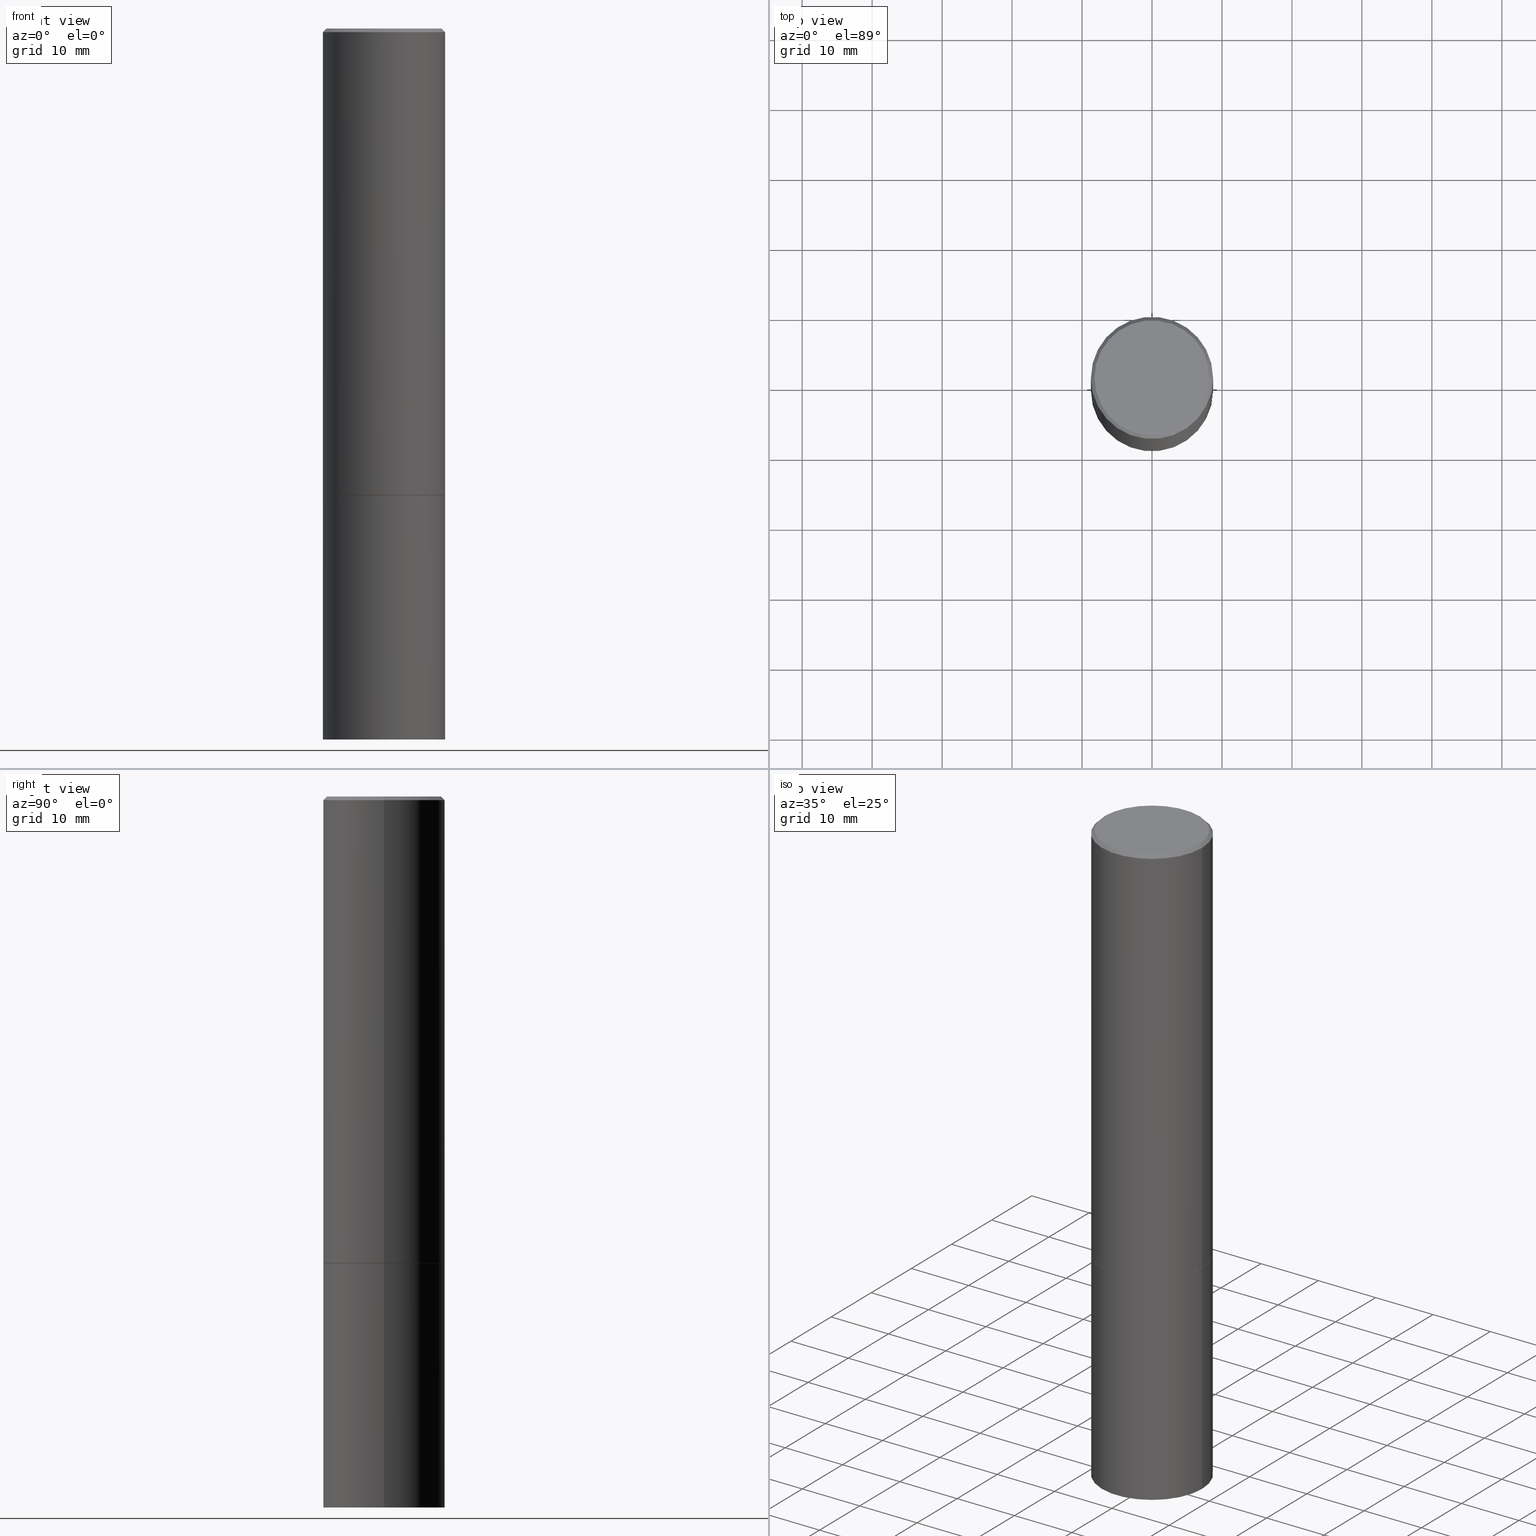
[diagram: canonical four-view strip — front | top / right | iso, engineering-drawing reading convention]
A machine part, canonical four-view strip (front | top / right | iso — engineering-drawing reading convention). The complete STEP part file that produces these views, byte-faithful:
ISO-10303-21;
HEADER;
FILE_DESCRIPTION (( 'STEP AP203' ),
    '1' );
FILE_NAME ('39069.STEP',
    '2023-03-21T20:49:59',
    ( '' ),
    ( '' ),
    'SwSTEP 2.0',
    'SolidWorks 2022',
    '' );
FILE_SCHEMA (( 'CONFIG_CONTROL_DESIGN' ));
ENDSEC;

DATA;
#1 = CARTESIAN_POINT ( 'NONE',  ( -0.3427499999999999991, -6.729753287645514809E-15, -2.625000000000000444 ) ) ;
#2 = FACE_OUTER_BOUND ( 'NONE', #204, .T. ) ;
#3 = FACE_OUTER_BOUND ( 'NONE', #85, .T. ) ;
#4 = COORDINATED_UNIVERSAL_TIME_OFFSET ( 5, 0, .BEHIND. ) ;
#5 = CARTESIAN_POINT ( 'NONE',  ( 6.419355616235984688E-29, -9.165138514463258190E-15, -2.625000000000000444 ) ) ;
#6 = EDGE_CURVE ( 'NONE', #372, #180, #163, .T. ) ;
#7 = CIRCLE ( 'NONE', #279, 0.3437500000000000000 ) ;
#8 = VECTOR ( 'NONE', #309, 39.37007874015748143 ) ;
#9 =( GEOMETRIC_REPRESENTATION_CONTEXT ( 3 ) GLOBAL_UNCERTAINTY_ASSIGNED_CONTEXT ( ( #78 ) ) GLOBAL_UNIT_ASSIGNED_CONTEXT ( ( #214, #357, #335 ) ) REPRESENTATION_CONTEXT ( 'NONE', 'WORKASPACE' ) );
#10 = COORDINATED_UNIVERSAL_TIME_OFFSET ( 5, 0, .BEHIND. ) ;
#11 = ORIENTED_EDGE ( 'NONE', *, *, #103, .T. ) ;
#12 = EDGE_LOOP ( 'NONE', ( #50, #53, #273, #347 ) ) ;
#13 = APPROVAL_DATE_TIME ( #286, #260 ) ;
#14 = CC_DESIGN_APPROVAL ( #232, ( #154 ) ) ;
#15 = CYLINDRICAL_SURFACE ( 'NONE', #21, 0.3437500000000000000 ) ;
#16 = ORIENTED_EDGE ( 'NONE', *, *, #51, .F. ) ;
#17 = CIRCLE ( 'NONE', #389, 0.3427499999999999991 ) ;
#18 = ORIENTED_EDGE ( 'NONE', *, *, #258, .T. ) ;
#19 = CLOSED_SHELL ( 'NONE', ( #340, #136, #172, #196, #140, #193, #44, #125 ) ) ;
#20 = ORIENTED_EDGE ( 'NONE', *, *, #356, .T. ) ;
#21 = AXIS2_PLACEMENT_3D ( 'NONE', #210, #301, #155 ) ;
#22 = DIRECTION ( 'NONE',  ( -2.445468806185136597E-29, 3.491481338843145583E-15, 1.000000000000000000 ) ) ;
#23 = EDGE_LOOP ( 'NONE', ( #305, #321 ) ) ;
#24 = FACE_OUTER_BOUND ( 'NONE', #266, .T. ) ;
#25 = CARTESIAN_POINT ( 'NONE',  ( -0.3437500000000000000, -2.173247675775292485E-15, -2.624000000000000110 ) ) ;
#26 = CARTESIAN_POINT ( 'NONE',  ( 6.416910147429799085E-29, -9.161647033124413605E-15, -2.624000000000000110 ) ) ;
#27 = DIRECTION ( 'NONE',  ( -2.445468806185136597E-29, 3.491481338843145583E-15, 1.000000000000000000 ) ) ;
#28 = DIRECTION ( 'NONE',  ( -1.000000000000000000, 6.982962677686266711E-15, 0.000000000000000000 ) ) ;
#29 = CONICAL_SURFACE ( 'NONE', #224, 0.3437499999999997224, 0.7853981633974473908 ) ;
#30 = PRODUCT_DEFINITION_FORMATION_WITH_SPECIFIED_SOURCE ( 'ANY', '', #116, .NOT_KNOWN. ) ;
#31 = CARTESIAN_POINT ( 'NONE',  ( -1.043851414335219820E-46, 1.490343170380447200E-32, 4.268512490100411279E-18 ) ) ;
#32 = DIRECTION ( 'NONE',  ( 1.000000000000000000, -6.982962677686263555E-15, 0.000000000000000000 ) ) ;
#33 = DATE_TIME_ROLE ( 'creation_date' ) ;
#34 = FACE_OUTER_BOUND ( 'NONE', #12, .T. ) ;
#35 = EDGE_CURVE ( 'NONE', #255, #205, #17, .T. ) ;
#36 = LINE ( 'NONE', #1, #277 ) ;
#37 = APPROVAL_DATE_TIME ( #39, #232 ) ;
#38 = EDGE_LOOP ( 'NONE', ( #367, #175, #290, #189 ) ) ;
#39 = DATE_AND_TIME ( #227, #239 ) ;
#40 = PERSON_AND_ORGANIZATION ( #275, #106 ) ;
#41 = EDGE_LOOP ( 'NONE', ( #129, #184, #18, #43 ) ) ;
#42 = APPROVAL_STATUS ( 'not_yet_approved' ) ;
#43 = ORIENTED_EDGE ( 'NONE', *, *, #319, .F. ) ;
#44 = ADVANCED_FACE ( 'NONE', ( #115 ), #209, .F. ) ;
#45 = DIRECTION ( 'NONE',  ( 1.000000000000000000, -6.982962677686265922E-15, 4.876176775795935793E-29 ) ) ;
#46 = EDGE_LOOP ( 'NONE', ( #268, #296 ) ) ;
#47 = DIRECTION ( 'NONE',  ( 0.9986295347545742773, -7.033825938271997912E-15, -0.05233595624293643084 ) ) ;
#48 = CIRCLE ( 'NONE', #222, 0.3437499999999997224 ) ;
#49 = EDGE_CURVE ( 'NONE', #147, #372, #171, .T. ) ;
#50 = ORIENTED_EDGE ( 'NONE', *, *, #35, .T. ) ;
#51 = EDGE_CURVE ( 'NONE', #147, #180, #139, .T. ) ;
#52 = DIRECTION ( 'NONE',  ( -2.445468806185136597E-29, 3.491481338843145583E-15, 1.000000000000000000 ) ) ;
#53 = ORIENTED_EDGE ( 'NONE', *, *, #142, .T. ) ;
#54 = DIRECTION ( 'NONE',  ( 1.000000000000000000, 0.000000000000000000, 0.000000000000000000 ) ) ;
#55 = CIRCLE ( 'NONE', #99, 0.3437499999999997224 ) ;
#56 = PRODUCT_DEFINITION_SHAPE ( 'NONE', 'NONE',  #154 ) ;
#57 = DIRECTION ( 'NONE',  ( -2.445468806185136877E-29, 3.491481338843145188E-15, 1.000000000000000000 ) ) ;
#58 = EDGE_LOOP ( 'NONE', ( #88, #20, #73, #353 ) ) ;
#59 = DIRECTION ( 'NONE',  ( -2.445468806185136597E-29, 3.491481338843145583E-15, 1.000000000000000000 ) ) ;
#60 = DIRECTION ( 'NONE',  ( 2.445468806185136597E-29, -3.491481338843145583E-15, -1.000000000000000000 ) ) ;
#61 = DIRECTION ( 'NONE',  ( -0.7071067811864267805, 7.493145998869918709E-15, 0.7071067811866682540 ) ) ;
#62 = DIRECTION ( 'NONE',  ( -2.445468806185136597E-29, 3.491481338843145583E-15, 1.000000000000000000 ) ) ;
#63 = CARTESIAN_POINT ( 'NONE',  ( 4.890937612370296805E-31, -6.982962677686323656E-17, -0.02000000000000009409 ) ) ;
#64 = VECTOR ( 'NONE', #47, 39.37007874015748143 ) ;
#65 = AXIS2_PLACEMENT_3D ( 'NONE', #191, #52, #79 ) ;
#66 = CARTESIAN_POINT ( 'NONE',  ( 0.3437499999999998335, -2.400393420454653393E-15, 1.676185766679852018E-29 ) ) ;
#67 = CARTESIAN_POINT ( 'NONE',  ( -0.3437499999999998335, 2.442490654175343206E-15, -1.690883937275123074E-29 ) ) ;
#68 = CALENDAR_DATE ( 2023, 21, 3 ) ;
#69 = ORIENTED_EDGE ( 'NONE', *, *, #253, .F. ) ;
#70 = DIRECTION ( 'NONE',  ( 2.445468806185136597E-29, -3.491481338843145583E-15, -1.000000000000000000 ) ) ;
#71 = VERTEX_POINT ( 'NONE', #81 ) ;
#72 = PERSON_AND_ORGANIZATION ( #275, #106 ) ;
#73 = ORIENTED_EDGE ( 'NONE', *, *, #360, .T. ) ;
#74 = DATE_AND_TIME ( #254, #113 ) ;
#75 = EDGE_LOOP ( 'NONE', ( #16, #206, #104 ) ) ;
#76 = CC_DESIGN_PERSON_AND_ORGANIZATION_ASSIGNMENT ( #350, #316, ( #116 ) ) ;
#77 = CALENDAR_DATE ( 2023, 21, 3 ) ;
#78 = UNCERTAINTY_MEASURE_WITH_UNIT (LENGTH_MEASURE( 1.000000000000000082E-05 ), #214, 'distance_accuracy_value', 'NONE');
#79 = DIRECTION ( 'NONE',  ( 1.000000000000000000, -6.982962677686266711E-15, 4.876157412475881652E-29 ) ) ;
#80 = AXIS2_PLACEMENT_3D ( 'NONE', #195, #373, #317 ) ;
#81 = CARTESIAN_POINT ( 'NONE',  ( 0.3437500000000000000, -1.156553193491791158E-14, -2.625000000000000000 ) ) ;
#82 = EDGE_LOOP ( 'NONE', ( #160, #377, #107, #328 ) ) ;
#83 = AXIS2_PLACEMENT_3D ( 'NONE', #5, #345, #151 ) ;
#84 = CC_DESIGN_SECURITY_CLASSIFICATION ( #351, ( #30 ) ) ;
#85 = EDGE_LOOP ( 'NONE', ( #89, #169, #134, #386 ) ) ;
#86 = CARTESIAN_POINT ( 'NONE',  ( 0.000000000000000000, 0.000000000000000000, 0.000000000000000000 ) ) ;
#87 = CARTESIAN_POINT ( 'NONE',  ( 0.3437499999999997224, -2.428125813510825301E-15, -0.02000000000000009409 ) ) ;
#88 = ORIENTED_EDGE ( 'NONE', *, *, #225, .F. ) ;
#89 = ORIENTED_EDGE ( 'NONE', *, *, #145, .F. ) ;
#90 = LINE ( 'NONE', #361, #187 ) ;
#91 = DIRECTION ( 'NONE',  ( -1.000000000000000000, 6.982962677686265922E-15, -4.876176775795935793E-29 ) ) ;
#92 = ADVANCED_FACE ( 'NONE', ( #159 ), #108, .F. ) ;
#93 = FACE_OUTER_BOUND ( 'NONE', #100, .T. ) ;
#94 = DIRECTION ( 'NONE',  ( -2.445468806185136597E-29, 3.491481338843145583E-15, 1.000000000000000000 ) ) ;
#95 = DIRECTION ( 'NONE',  ( -2.445468806185136597E-29, 3.491481338843145583E-15, 1.000000000000000000 ) ) ;
#96 = EDGE_CURVE ( 'NONE', #237, #212, #143, .T. ) ;
#97 = CARTESIAN_POINT ( 'NONE',  ( 2.260734166900926402E-15, 0.3237499999999996492, -1.128232827205417129E-15 ) ) ;
#98 = CLOSED_SHELL ( 'NONE', ( #324, #92, #295, #236, #167 ) ) ;
#99 = AXIS2_PLACEMENT_3D ( 'NONE', #338, #62, #185 ) ;
#100 = EDGE_LOOP ( 'NONE', ( #11, #138, #162, #271 ) ) ;
#101 = CARTESIAN_POINT ( 'NONE',  ( 1.060161191344789336E-27, -1.513629209411318885E-13, -43.35206356602893152 ) ) ;
#102 = PERSON_AND_ORGANIZATION ( #275, #106 ) ;
#103 = EDGE_CURVE ( 'NONE', #212, #237, #348, .T. ) ;
#104 = ORIENTED_EDGE ( 'NONE', *, *, #203, .F. ) ;
#105 = SECURITY_CLASSIFICATION_LEVEL ( 'unclassified' ) ;
#106 = ORGANIZATION ( 'UNSPECIFIED', 'UNSPECIFIED', '' ) ;
#107 = ORIENTED_EDGE ( 'NONE', *, *, #150, .T. ) ;
#108 = CONICAL_SURFACE ( 'NONE', #247, 751.2258538476739886, 1.518436449235074148 ) ;
#109 = LOCAL_TIME ( 16, 49, 59.00000000000000000, #346 ) ;
#110 = CARTESIAN_POINT ( 'NONE',  ( -7.993848664353087702E-19, -1.390302571108676536E-14, -3.981984825871457190 ) ) ;
#111 = AXIS2_PLACEMENT_3D ( 'NONE', #181, #334, #91 ) ;
#112 = CARTESIAN_POINT ( 'NONE',  ( 6.419355616235984688E-29, -9.165138514463258190E-15, -2.625000000000000444 ) ) ;
#113 = LOCAL_TIME ( 16, 49, 59.00000000000000000, #10 ) ;
#114 = ORIENTED_EDGE ( 'NONE', *, *, #264, .F. ) ;
#115 = FACE_OUTER_BOUND ( 'NONE', #141, .T. ) ;
#116 = PRODUCT ( '39069', '39069', '', ( #190 ) ) ;
#117 = DIRECTION ( 'NONE',  ( 1.000000000000000000, -6.982962677686265133E-15, 0.000000000000000000 ) ) ;
#118 = LINE ( 'NONE', #245, #257 ) ;
#119 = FACE_OUTER_BOUND ( 'NONE', #23, .T. ) ;
#120 = VECTOR ( 'NONE', #354, 39.37007874015748143 ) ;
#121 = APPLICATION_PROTOCOL_DEFINITION ( 'international standard', 'config_control_design', 1994, #200 ) ;
#122 = FACE_OUTER_BOUND ( 'NONE', #38, .T. ) ;
#123 = FACE_OUTER_BOUND ( 'NONE', #46, .T. ) ;
#124 = DIRECTION ( 'NONE',  ( 2.445468806185136597E-29, -3.491481338843145583E-15, -1.000000000000000000 ) ) ;
#125 = ADVANCED_FACE ( 'NONE', ( #119 ), #304, .F. ) ;
#126 = PERSON_AND_ORGANIZATION ( #275, #106 ) ;
#127 = DIRECTION ( 'NONE',  ( -2.445468806185136597E-29, 3.491481338843145583E-15, 1.000000000000000000 ) ) ;
#128 = CC_DESIGN_PERSON_AND_ORGANIZATION_ASSIGNMENT ( #72, #349, ( #351 ) ) ;
#129 = ORIENTED_EDGE ( 'NONE', *, *, #289, .F. ) ;
#130 = DIRECTION ( 'NONE',  ( 1.000000000000000000, -6.982962677686263555E-15, 0.000000000000000000 ) ) ;
#131 = ORIENTED_EDGE ( 'NONE', *, *, #51, .T. ) ;
#132 = CALENDAR_DATE ( 2023, 21, 3 ) ;
#133 = AXIS2_PLACEMENT_3D ( 'NONE', #179, #94, #218 ) ;
#134 = ORIENTED_EDGE ( 'NONE', *, *, #265, .T. ) ;
#135 = DATE_TIME_ROLE ( 'classification_date' ) ;
#136 = ADVANCED_FACE ( 'NONE', ( #93 ), #300, .T. ) ;
#137 = VECTOR ( 'NONE', #336, 39.37007874015748143 ) ;
#138 = ORIENTED_EDGE ( 'NONE', *, *, #145, .T. ) ;
#139 = LINE ( 'NONE', #110, #120 ) ;
#140 = ADVANCED_FACE ( 'NONE', ( #3 ), #152, .T. ) ;
#141 = EDGE_LOOP ( 'NONE', ( #359, #69 ) ) ;
#142 = EDGE_CURVE ( 'NONE', #205, #237, #36, .T. ) ;
#143 = CIRCLE ( 'NONE', #287, 0.3437500000000000000 ) ;
#144 = DIRECTION ( 'NONE',  ( 1.000000000000000000, -6.982962677686269077E-15, 0.000000000000000000 ) ) ;
#145 = EDGE_CURVE ( 'NONE', #237, #380, #219, .T. ) ;
#146 = AXIS2_PLACEMENT_3D ( 'NONE', #249, #221, #216 ) ;
#147 = VERTEX_POINT ( 'NONE', #281 ) ;
#148 = LINE ( 'NONE', #87, #352 ) ;
#149 = CARTESIAN_POINT ( 'NONE',  ( 4.890937612370296805E-31, -6.982962677686323656E-17, -0.02000000000000009409 ) ) ;
#150 = EDGE_CURVE ( 'NONE', #255, #212, #274, .T. ) ;
#151 = DIRECTION ( 'NONE',  ( 1.000000000000000000, -6.982962677686265133E-15, 0.000000000000000000 ) ) ;
#152 = CYLINDRICAL_SURFACE ( 'NONE', #230, 0.3437499999999998335 ) ;
#153 = CONICAL_SURFACE ( 'NONE', #371, 0.3437499999999997224, 0.7853981633974473908 ) ;
#154 = PRODUCT_DEFINITION ( 'UNKNOWN', '', #30, #202 ) ;
#155 = DIRECTION ( 'NONE',  ( 1.000000000000000000, -6.982962677686265922E-15, 4.876176775795935793E-29 ) ) ;
#156 = CARTESIAN_POINT ( 'NONE',  ( -0.3437500000000006661, -1.156553193491792420E-14, -4.000000000000000000 ) ) ;
#157 = PERSON_AND_ORGANIZATION_ROLE ( 'design_supplier' ) ;
#158 = CYLINDRICAL_SURFACE ( 'NONE', #133, 0.3437500000000000000 ) ;
#159 = FACE_OUTER_BOUND ( 'NONE', #75, .T. ) ;
#160 = ORIENTED_EDGE ( 'NONE', *, *, #142, .F. ) ;
#161 = ORIENTED_EDGE ( 'NONE', *, *, #49, .F. ) ;
#162 = ORIENTED_EDGE ( 'NONE', *, *, #360, .F. ) ;
#163 = CIRCLE ( 'NONE', #238, 0.3437500000000000000 ) ;
#164 = APPROVAL_STATUS ( 'not_yet_approved' ) ;
#165 = LOCAL_TIME ( 16, 49, 59.00000000000000000, #166 ) ;
#166 = COORDINATED_UNIVERSAL_TIME_OFFSET ( 5, 0, .BEHIND. ) ;
#167 = ADVANCED_FACE ( 'NONE', ( #123 ), #339, .F. ) ;
#168 = CC_DESIGN_PERSON_AND_ORGANIZATION_ASSIGNMENT ( #320, #370, ( #30 ) ) ;
#169 = ORIENTED_EDGE ( 'NONE', *, *, #96, .T. ) ;
#170 = CC_DESIGN_DATE_AND_TIME_ASSIGNMENT ( #74, #135, ( #351 ) ) ;
#171 = LINE ( 'NONE', #293, #64 ) ;
#172 = ADVANCED_FACE ( 'NONE', ( #250 ), #29, .T. ) ;
#173 = AXIS2_PLACEMENT_3D ( 'NONE', #365, #369, #130 ) ;
#174 = CARTESIAN_POINT ( 'NONE',  ( 9.781875224740546387E-29, -1.396592535537258233E-14, -4.000000000000000000 ) ) ;
#175 = ORIENTED_EDGE ( 'NONE', *, *, #289, .T. ) ;
#176 = CARTESIAN_POINT ( 'NONE',  ( 0.3427499999999999991, -1.155854897224022715E-14, -2.625000000000000444 ) ) ;
#177 = DIRECTION ( 'NONE',  ( -2.438088387897960049E-29, 3.491481338843145188E-15, 1.000000000000000000 ) ) ;
#178 =( LENGTH_UNIT ( ) NAMED_UNIT ( * ) SI_UNIT ( $, .METRE. ) );
#179 = CARTESIAN_POINT ( 'NONE',  ( 0.000000000000000000, 0.000000000000000000, 0.000000000000000000 ) ) ;
#180 = VERTEX_POINT ( 'NONE', #156 ) ;
#181 = CARTESIAN_POINT ( 'NONE',  ( 2.400393420454718079E-15, 0.3437499999999908407, -2.625000000000000888 ) ) ;
#182 = CARTESIAN_POINT ( 'NONE',  ( -0.3437499999999997224, 2.330563793677788911E-15, -0.02000000000000009409 ) ) ;
#183 = DIRECTION ( 'NONE',  ( -2.445468806185136877E-29, 3.491481338843145188E-15, 1.000000000000000000 ) ) ;
#184 = ORIENTED_EDGE ( 'NONE', *, *, #203, .T. ) ;
#185 = DIRECTION ( 'NONE',  ( 1.000000000000000000, -6.982962677686266711E-15, 0.000000000000000000 ) ) ;
#186 = CARTESIAN_POINT ( 'NONE',  ( 0.3427499999999999991, -1.155854897224022715E-14, -2.625000000000000444 ) ) ;
#187 = VECTOR ( 'NONE', #57, 39.37007874015748143 ) ;
#188 = CARTESIAN_POINT ( 'NONE',  ( 1.060161191344789336E-27, -1.513629209411318885E-13, -43.35206356602893152 ) ) ;
#189 = ORIENTED_EDGE ( 'NONE', *, *, #258, .F. ) ;
#190 = MECHANICAL_CONTEXT ( 'NONE', #200, 'mechanical' ) ;
#191 = CARTESIAN_POINT ( 'NONE',  ( -1.043851414335219820E-46, 1.490343170380447200E-32, 4.268512490100411279E-18 ) ) ;
#192 = SHAPE_DEFINITION_REPRESENTATION ( #56, #376 ) ;
#193 = ADVANCED_FACE ( 'NONE', ( #252 ), #318, .T. ) ;
#194 = PERSON_AND_ORGANIZATION ( #275, #106 ) ;
#195 = CARTESIAN_POINT ( 'NONE',  ( 6.419355616235983567E-29, -9.165138514463256612E-15, -2.625000000000000000 ) ) ;
#196 = ADVANCED_FACE ( 'NONE', ( #24 ), #153, .T. ) ;
#197 = CONICAL_SURFACE ( 'NONE', #366, 0.3427499999999999991, 0.7853981633972775267 ) ;
#198 = PRODUCT_RELATED_PRODUCT_CATEGORY ( 'detail', '', ( #116 ) ) ;
#199 = CONICAL_SURFACE ( 'NONE', #342, 751.2258538476739886, 1.518436449235074148 ) ;
#200 = APPLICATION_CONTEXT ( 'configuration controlled 3d designs of mechanical parts and assemblies' ) ;
#201 = EDGE_CURVE ( 'NONE', #228, #380, #118, .T. ) ;
#202 = DESIGN_CONTEXT ( 'detailed design', #323, 'design' ) ;
#203 = EDGE_CURVE ( 'NONE', #180, #372, #298, .T. ) ;
#204 = EDGE_LOOP ( 'NONE', ( #161, #131, #235 ) ) ;
#205 = VERTEX_POINT ( 'NONE', #387 ) ;
#206 = ORIENTED_EDGE ( 'NONE', *, *, #49, .T. ) ;
#207 = DIRECTION ( 'NONE',  ( 0.7071067811865469066, -7.319954787623254468E-15, -0.7071067811865482389 ) ) ;
#208 = MANIFOLD_SOLID_BREP ( 'Body-Move/Copy2[2]', #19 ) ;
#209 = PLANE ( 'NONE',  #325 ) ;
#210 = CARTESIAN_POINT ( 'NONE',  ( 0.000000000000000000, 0.000000000000000000, 0.000000000000000000 ) ) ;
#211 = AXIS2_PLACEMENT_3D ( 'NONE', #283, #223, #256 ) ;
#212 = VERTEX_POINT ( 'NONE', #248 ) ;
#213 = DIRECTION ( 'NONE',  ( -1.000000000000000000, 6.982962677686266711E-15, 0.000000000000000000 ) ) ;
#214 =( CONVERSION_BASED_UNIT ( 'INCH', #241 ) LENGTH_UNIT ( ) NAMED_UNIT ( #291 ) );
#215 = VERTEX_POINT ( 'NONE', #363 ) ;
#216 = DIRECTION ( 'NONE',  ( 1.000000000000000000, -6.982962677686265133E-15, 0.000000000000000000 ) ) ;
#217 = DIRECTION ( 'NONE',  ( -1.000000000000000000, 6.982962677686265922E-15, -4.876176775795935793E-29 ) ) ;
#218 = DIRECTION ( 'NONE',  ( 1.000000000000000000, -6.982962677686265922E-15, 4.876176775795935793E-29 ) ) ;
#219 = LINE ( 'NONE', #67, #388 ) ;
#220 = EDGE_CURVE ( 'NONE', #71, #267, #270, .T. ) ;
#221 = DIRECTION ( 'NONE',  ( -2.445468806185136597E-29, 3.491481338843145583E-15, 1.000000000000000000 ) ) ;
#222 = AXIS2_PLACEMENT_3D ( 'NONE', #299, #22, #272 ) ;
#223 = DIRECTION ( 'NONE',  ( -2.445468806185136597E-29, 3.491481338843145583E-15, 1.000000000000000000 ) ) ;
#224 = AXIS2_PLACEMENT_3D ( 'NONE', #63, #124, #213 ) ;
#225 = EDGE_CURVE ( 'NONE', #215, #228, #308, .T. ) ;
#226 = CARTESIAN_POINT ( 'NONE',  ( 0.000000000000000000, 0.000000000000000000, 0.000000000000000000 ) ) ;
#227 = CALENDAR_DATE ( 2023, 21, 3 ) ;
#228 = VERTEX_POINT ( 'NONE', #327 ) ;
#229 = PERSON_AND_ORGANIZATION ( #275, #106 ) ;
#230 = AXIS2_PLACEMENT_3D ( 'NONE', #226, #337, #343 ) ;
#231 = PERSON_AND_ORGANIZATION_ROLE ( 'creator' ) ;
#232 = APPROVAL ( #263, 'UNSPECIFIED' ) ;
#233 = CIRCLE ( 'NONE', #146, 0.3427499999999999991 ) ;
#234 = AXIS2_PLACEMENT_3D ( 'NONE', #86, #330, #54 ) ;
#235 = ORIENTED_EDGE ( 'NONE', *, *, #6, .F. ) ;
#236 = ADVANCED_FACE ( 'NONE', ( #292 ), #15, .T. ) ;
#237 = VERTEX_POINT ( 'NONE', #25 ) ;
#238 = AXIS2_PLACEMENT_3D ( 'NONE', #174, #381, #144 ) ;
#239 = LOCAL_TIME ( 16, 49, 59.00000000000000000, #261 ) ;
#240 = APPROVAL ( #164, 'UNSPECIFIED' ) ;
#241 = LENGTH_MEASURE_WITH_UNIT ( LENGTH_MEASURE( 0.02539999999999999897 ), #178 );
#242 = VERTEX_POINT ( 'NONE', #244 ) ;
#243 = ORIENTED_EDGE ( 'NONE', *, *, #356, .F. ) ;
#244 = CARTESIAN_POINT ( 'NONE',  ( 0.3437499999999997224, -2.428125813510825301E-15, -0.02000000000000009409 ) ) ;
#245 = CARTESIAN_POINT ( 'NONE',  ( -0.3437499999999997224, 2.330563793677788911E-15, -0.02000000000000009409 ) ) ;
#246 = DIRECTION ( 'NONE',  ( 1.000000000000000000, -6.982962677686266711E-15, 4.876157412475881652E-29 ) ) ;
#247 = AXIS2_PLACEMENT_3D ( 'NONE', #101, #280, #28 ) ;
#248 = CARTESIAN_POINT ( 'NONE',  ( 0.3437500000000000000, -1.156204045357906700E-14, -2.624000000000000110 ) ) ;
#249 = CARTESIAN_POINT ( 'NONE',  ( 6.419355616235984688E-29, -9.165138514463258190E-15, -2.625000000000000444 ) ) ;
#250 = FACE_OUTER_BOUND ( 'NONE', #58, .T. ) ;
#251 = DIRECTION ( 'NONE',  ( -2.445468806185136597E-29, 3.491481338843145583E-15, 1.000000000000000000 ) ) ;
#252 = FACE_OUTER_BOUND ( 'NONE', #82, .T. ) ;
#253 = EDGE_CURVE ( 'NONE', #205, #255, #233, .T. ) ;
#254 = CALENDAR_DATE ( 2023, 21, 3 ) ;
#255 = VERTEX_POINT ( 'NONE', #176 ) ;
#256 = DIRECTION ( 'NONE',  ( 1.000000000000000000, -6.982962677686267499E-15, 4.876176775795935232E-29 ) ) ;
#257 = VECTOR ( 'NONE', #362, 39.37007874015748143 ) ;
#258 = EDGE_CURVE ( 'NONE', #372, #71, #278, .T. ) ;
#259 = APPROVAL_DATE_TIME ( #285, #240 ) ;
#260 = APPROVAL ( #42, 'UNSPECIFIED' ) ;
#261 = COORDINATED_UNIVERSAL_TIME_OFFSET ( 5, 0, .BEHIND. ) ;
#262 = LOCAL_TIME ( 16, 49, 59.00000000000000000, #4 ) ;
#263 = APPROVAL_STATUS ( 'not_yet_approved' ) ;
#264 = EDGE_CURVE ( 'NONE', #228, #215, #326, .T. ) ;
#265 = EDGE_CURVE ( 'NONE', #212, #242, #358, .T. ) ;
#266 = EDGE_LOOP ( 'NONE', ( #243, #114, #368, #329 ) ) ;
#267 = VERTEX_POINT ( 'NONE', #390 ) ;
#268 = ORIENTED_EDGE ( 'NONE', *, *, #220, .T. ) ;
#269 = AXIS2_PLACEMENT_3D ( 'NONE', #302, #59, #276 ) ;
#270 = CIRCLE ( 'NONE', #80, 0.3437500000000000000 ) ;
#271 = ORIENTED_EDGE ( 'NONE', *, *, #265, .F. ) ;
#272 = DIRECTION ( 'NONE',  ( 1.000000000000000000, -6.982962677686266711E-15, 0.000000000000000000 ) ) ;
#273 = ORIENTED_EDGE ( 'NONE', *, *, #103, .F. ) ;
#274 = LINE ( 'NONE', #186, #8 ) ;
#275 = PERSON ( 'UNSPECIFIED', 'UNSPECIFIED', 'UNSPECIFIED', ('UNSPECIFIED'), ('UNSPECIFIED'), ('UNSPECIFIED') ) ;
#276 = DIRECTION ( 'NONE',  ( 1.000000000000000000, -6.982962677686269077E-15, 0.000000000000000000 ) ) ;
#277 = VECTOR ( 'NONE', #61, 39.37007874015748143 ) ;
#278 = LINE ( 'NONE', #341, #137 ) ;
#279 = AXIS2_PLACEMENT_3D ( 'NONE', #303, #27, #307 ) ;
#280 = DIRECTION ( 'NONE',  ( 2.445468806185136597E-29, -3.491481338843145583E-15, -1.000000000000000000 ) ) ;
#281 = CARTESIAN_POINT ( 'NONE',  ( 9.737261470902389695E-29, -1.390382509595329685E-14, -3.981984825871457190 ) ) ;
#282 = APPROVAL_ROLE ( '' ) ;
#283 = CARTESIAN_POINT ( 'NONE',  ( 0.000000000000000000, 0.000000000000000000, 0.000000000000000000 ) ) ;
#284 = APPROVAL_PERSON_ORGANIZATION ( #102, #232, #314 ) ;
#285 = DATE_AND_TIME ( #132, #262 ) ;
#286 = DATE_AND_TIME ( #68, #165 ) ;
#287 = AXIS2_PLACEMENT_3D ( 'NONE', #26, #95, #32 ) ;
#288 = APPROVAL_PERSON_ORGANIZATION ( #194, #240, #282 ) ;
#289 = EDGE_CURVE ( 'NONE', #180, #267, #90, .T. ) ;
#290 = ORIENTED_EDGE ( 'NONE', *, *, #220, .F. ) ;
#291 = DIMENSIONAL_EXPONENTS ( 1.000000000000000000, 0.000000000000000000, 0.000000000000000000, 0.000000000000000000, 0.000000000000000000, 0.000000000000000000, 0.000000000000000000 ) ;
#292 = FACE_OUTER_BOUND ( 'NONE', #41, .T. ) ;
#293 = CARTESIAN_POINT ( 'NONE',  ( 7.993848666300651617E-19, -1.390302571108676536E-14, -3.981984825871457190 ) ) ;
#294 = DIRECTION ( 'NONE',  ( 1.000000000000000000, -6.982962677686265133E-15, 0.000000000000000000 ) ) ;
#295 = ADVANCED_FACE ( 'NONE', ( #2 ), #199, .F. ) ;
#296 = ORIENTED_EDGE ( 'NONE', *, *, #319, .T. ) ;
#297 = CC_DESIGN_APPROVAL ( #240, ( #30 ) ) ;
#298 = CIRCLE ( 'NONE', #269, 0.3437500000000000000 ) ;
#299 = CARTESIAN_POINT ( 'NONE',  ( 4.890937612370296805E-31, -6.982962677686323656E-17, -0.02000000000000009409 ) ) ;
#300 = CYLINDRICAL_SURFACE ( 'NONE', #211, 0.3437499999999998335 ) ;
#301 = DIRECTION ( 'NONE',  ( -2.445468806185136597E-29, 3.491481338843145583E-15, 1.000000000000000000 ) ) ;
#302 = CARTESIAN_POINT ( 'NONE',  ( 9.781875224740546387E-29, -1.396592535537258233E-14, -4.000000000000000000 ) ) ;
#303 = CARTESIAN_POINT ( 'NONE',  ( 6.419355616235983567E-29, -9.165138514463256612E-15, -2.625000000000000000 ) ) ;
#304 = PLANE ( 'NONE',  #306 ) ;
#305 = ORIENTED_EDGE ( 'NONE', *, *, #264, .T. ) ;
#306 = AXIS2_PLACEMENT_3D ( 'NONE', #97, #313, #217 ) ;
#307 = DIRECTION ( 'NONE',  ( 1.000000000000000000, -6.982962677686269077E-15, 0.000000000000000000 ) ) ;
#308 = CIRCLE ( 'NONE', #65, 0.3237499999999996492 ) ;
#309 = DIRECTION ( 'NONE',  ( 0.7071067811864267805, -2.468850131080992517E-15, 0.7071067811866682540 ) ) ;
#310 = APPLICATION_PROTOCOL_DEFINITION ( 'international standard', 'config_control_design', 1994, #323 ) ;
#311 = CC_DESIGN_DATE_AND_TIME_ASSIGNMENT ( #322, #33, ( #154 ) ) ;
#312 = DIRECTION ( 'NONE',  ( -2.445468806185136877E-29, 3.491481338843145188E-15, 1.000000000000000000 ) ) ;
#313 = DIRECTION ( 'NONE',  ( 2.438088387897960049E-29, -3.491481338843145188E-15, -1.000000000000000000 ) ) ;
#314 = APPROVAL_ROLE ( '' ) ;
#315 = CC_DESIGN_PERSON_AND_ORGANIZATION_ASSIGNMENT ( #126, #157, ( #30 ) ) ;
#316 = PERSON_AND_ORGANIZATION_ROLE ( 'design_owner' ) ;
#317 = DIRECTION ( 'NONE',  ( 1.000000000000000000, -6.982962677686269077E-15, 0.000000000000000000 ) ) ;
#318 = CONICAL_SURFACE ( 'NONE', #83, 0.3427499999999999991, 0.7853981633972775267 ) ;
#319 = EDGE_CURVE ( 'NONE', #267, #71, #7, .T. ) ;
#320 = PERSON_AND_ORGANIZATION ( #275, #106 ) ;
#321 = ORIENTED_EDGE ( 'NONE', *, *, #225, .T. ) ;
#322 = DATE_AND_TIME ( #77, #109 ) ;
#323 = APPLICATION_CONTEXT ( 'configuration controlled 3d designs of mechanical parts and assemblies' ) ;
#324 = ADVANCED_FACE ( 'NONE', ( #122 ), #158, .T. ) ;
#325 = AXIS2_PLACEMENT_3D ( 'NONE', #332, #177, #45 ) ;
#326 = CIRCLE ( 'NONE', #355, 0.3237499999999996492 ) ;
#327 = CARTESIAN_POINT ( 'NONE',  ( -0.3237499999999996492, 2.295648980289358051E-15, 4.268512490084478446E-18 ) ) ;
#328 = ORIENTED_EDGE ( 'NONE', *, *, #96, .F. ) ;
#329 = ORIENTED_EDGE ( 'NONE', *, *, #379, .T. ) ;
#330 = DIRECTION ( 'NONE',  ( 0.000000000000000000, 0.000000000000000000, 1.000000000000000000 ) ) ;
#331 = CARTESIAN_POINT ( 'NONE',  ( 0.3437500000000006661, -1.632422154210654946E-14, -4.000000000000000000 ) ) ;
#332 = CARTESIAN_POINT ( 'NONE',  ( 6.419355616235984688E-29, -9.165138514463258190E-15, -2.625000000000000444 ) ) ;
#333 = APPROVAL_PERSON_ORGANIZATION ( #229, #260, #344 ) ;
#334 = DIRECTION ( 'NONE',  ( 2.438088387897960049E-29, -3.491481338843145188E-15, -1.000000000000000000 ) ) ;
#335 =( NAMED_UNIT ( * ) SI_UNIT ( $, .STERADIAN. ) SOLID_ANGLE_UNIT ( ) );
#336 = DIRECTION ( 'NONE',  ( -2.445468806185136877E-29, 3.491481338843145188E-15, 1.000000000000000000 ) ) ;
#337 = DIRECTION ( 'NONE',  ( -2.445468806185136597E-29, 3.491481338843145583E-15, 1.000000000000000000 ) ) ;
#338 = CARTESIAN_POINT ( 'NONE',  ( 4.890937612370296805E-31, -6.982962677686323656E-17, -0.02000000000000009409 ) ) ;
#339 = PLANE ( 'NONE',  #111 ) ;
#340 = ADVANCED_FACE ( 'NONE', ( #34 ), #197, .T. ) ;
#341 = CARTESIAN_POINT ( 'NONE',  ( 0.3437500000000000000, -2.400393420454653787E-15, 1.676185766679852859E-29 ) ) ;
#342 = AXIS2_PLACEMENT_3D ( 'NONE', #188, #60, #364 ) ;
#343 = DIRECTION ( 'NONE',  ( 1.000000000000000000, -6.982962677686267499E-15, 4.876176775795935232E-29 ) ) ;
#344 = APPROVAL_ROLE ( '' ) ;
#345 = DIRECTION ( 'NONE',  ( -2.445468806185136597E-29, 3.491481338843145583E-15, 1.000000000000000000 ) ) ;
#346 = COORDINATED_UNIVERSAL_TIME_OFFSET ( 5, 0, .BEHIND. ) ;
#347 = ORIENTED_EDGE ( 'NONE', *, *, #150, .F. ) ;
#348 = CIRCLE ( 'NONE', #173, 0.3437500000000000000 ) ;
#349 = PERSON_AND_ORGANIZATION_ROLE ( 'classification_officer' ) ;
#350 = PERSON_AND_ORGANIZATION ( #275, #106 ) ;
#351 = SECURITY_CLASSIFICATION ( '', '', #105 ) ;
#352 = VECTOR ( 'NONE', #207, 39.37007874015748143 ) ;
#353 = ORIENTED_EDGE ( 'NONE', *, *, #201, .F. ) ;
#354 = DIRECTION ( 'NONE',  ( -0.9986295347545742773, 6.790662755453668466E-15, -0.05233595624293643084 ) ) ;
#355 = AXIS2_PLACEMENT_3D ( 'NONE', #31, #251, #246 ) ;
#356 = EDGE_CURVE ( 'NONE', #215, #242, #148, .T. ) ;
#357 =( NAMED_UNIT ( * ) PLANE_ANGLE_UNIT ( ) SI_UNIT ( $, .RADIAN. ) );
#358 = LINE ( 'NONE', #66, #382 ) ;
#359 = ORIENTED_EDGE ( 'NONE', *, *, #35, .F. ) ;
#360 = EDGE_CURVE ( 'NONE', #242, #380, #55, .T. ) ;
#361 = CARTESIAN_POINT ( 'NONE',  ( -0.3437500000000000000, 2.442490654175344389E-15, -1.690883937275123635E-29 ) ) ;
#362 = DIRECTION ( 'NONE',  ( -0.7071067811865469066, 2.468850131082249961E-15, -0.7071067811865482389 ) ) ;
#363 = CARTESIAN_POINT ( 'NONE',  ( 0.3237499999999996492, -2.324606020144678320E-15, 4.268512490116445031E-18 ) ) ;
#364 = DIRECTION ( 'NONE',  ( -1.000000000000000000, 6.982962677686266711E-15, 0.000000000000000000 ) ) ;
#365 = CARTESIAN_POINT ( 'NONE',  ( 6.416910147429799085E-29, -9.161647033124413605E-15, -2.624000000000000110 ) ) ;
#366 = AXIS2_PLACEMENT_3D ( 'NONE', #384, #127, #117 ) ;
#367 = ORIENTED_EDGE ( 'NONE', *, *, #6, .T. ) ;
#368 = ORIENTED_EDGE ( 'NONE', *, *, #201, .T. ) ;
#369 = DIRECTION ( 'NONE',  ( -2.445468806185136597E-29, 3.491481338843145583E-15, 1.000000000000000000 ) ) ;
#370 = PERSON_AND_ORGANIZATION_ROLE ( 'creator' ) ;
#371 = AXIS2_PLACEMENT_3D ( 'NONE', #149, #70, #385 ) ;
#372 = VERTEX_POINT ( 'NONE', #331 ) ;
#373 = DIRECTION ( 'NONE',  ( -2.445468806185136597E-29, 3.491481338843145583E-15, 1.000000000000000000 ) ) ;
#374 = CC_DESIGN_PERSON_AND_ORGANIZATION_ASSIGNMENT ( #40, #231, ( #154 ) ) ;
#375 = MANIFOLD_SOLID_BREP ( 'Body-Move/Copy2[1]', #98 ) ;
#376 = ADVANCED_BREP_SHAPE_REPRESENTATION ( '39069', ( #375, #208, #234 ), #9 ) ;
#377 = ORIENTED_EDGE ( 'NONE', *, *, #253, .T. ) ;
#378 = CC_DESIGN_APPROVAL ( #260, ( #351 ) ) ;
#379 = EDGE_CURVE ( 'NONE', #380, #242, #48, .T. ) ;
#380 = VERTEX_POINT ( 'NONE', #182 ) ;
#381 = DIRECTION ( 'NONE',  ( -2.445468806185136597E-29, 3.491481338843145583E-15, 1.000000000000000000 ) ) ;
#382 = VECTOR ( 'NONE', #312, 39.37007874015748143 ) ;
#383 = DIRECTION ( 'NONE',  ( -2.445468806185136597E-29, 3.491481338843145583E-15, 1.000000000000000000 ) ) ;
#384 = CARTESIAN_POINT ( 'NONE',  ( 6.419355616235984688E-29, -9.165138514463258190E-15, -2.625000000000000444 ) ) ;
#385 = DIRECTION ( 'NONE',  ( -1.000000000000000000, 6.982962677686266711E-15, 0.000000000000000000 ) ) ;
#386 = ORIENTED_EDGE ( 'NONE', *, *, #379, .F. ) ;
#387 = CARTESIAN_POINT ( 'NONE',  ( -0.3427499999999999991, -6.724454833297293196E-15, -2.625000000000000444 ) ) ;
#388 = VECTOR ( 'NONE', #183, 39.37007874015748143 ) ;
#389 = AXIS2_PLACEMENT_3D ( 'NONE', #112, #383, #294 ) ;
#390 = CARTESIAN_POINT ( 'NONE',  ( -0.3437500000000000000, -9.123041280742575082E-15, -2.625000000000000000 ) ) ;
ENDSEC;
END-ISO-10303-21;
